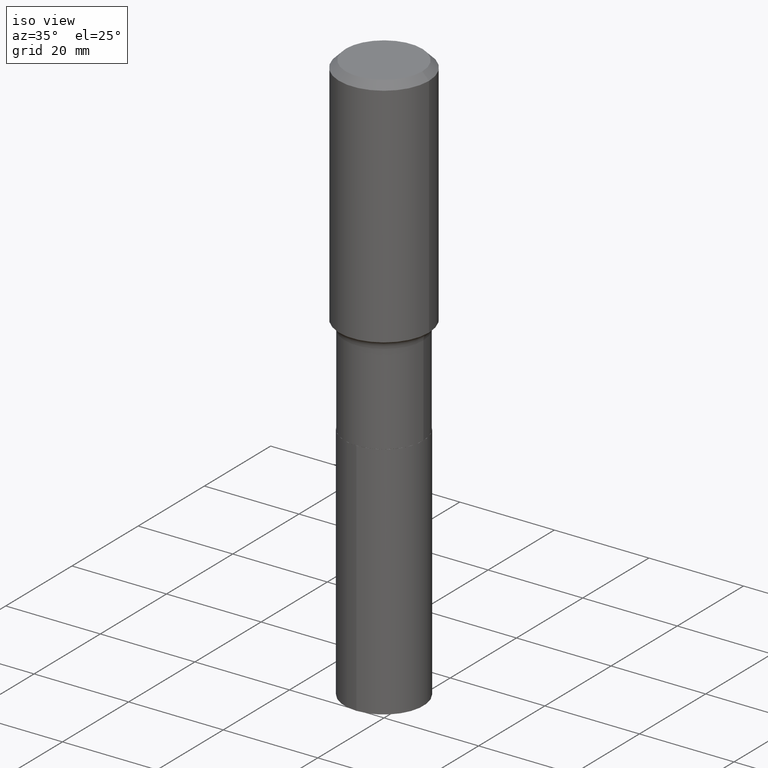
[diagram: clean part render]
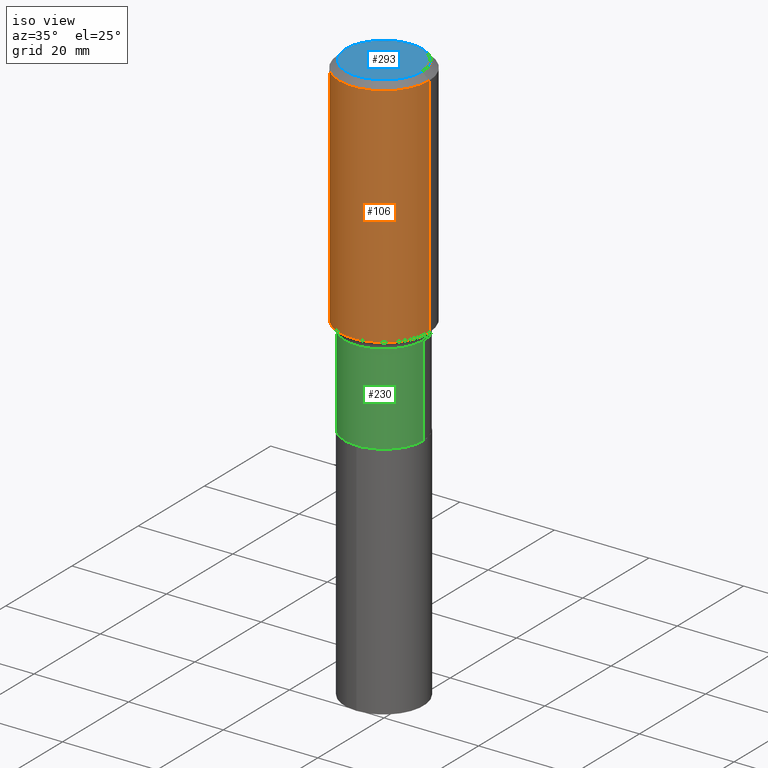
[diagram: same view with three faces highlighted in distinct colors, each labeled with its STEP entity id]
A machine part, iso view with three faces highlighted in distinct colors.
Their STEP definitions:

[orange] entity #106 — the highlighted cylindrical surface (partial cylindrical patch) has radius 9.525 mm, axis along (-0, 0, 1).
#9 = CARTESIAN_POINT ( 'NONE',  ( 0.3750000000000000555, -2.815006829442278240E-15, -0.05625000000000031364 ) ) ;
#21 = FACE_OUTER_BOUND ( 'NONE', #260, .T. ) ;
#35 = ORIENTED_EDGE ( 'NONE', *, *, #376, .T. ) ;
#37 = CARTESIAN_POINT ( 'NONE',  ( 1.375576203479146973E-30, -1.963958253099280262E-16, -0.05625000000000031364 ) ) ;
#42 = CARTESIAN_POINT ( 'NONE',  ( -0.3750000000000002220, -4.144091675948292406E-15, -1.950068258793734799 ) ) ;
#54 = VECTOR ( 'NONE', #235, 39.37007874015748143 ) ;
#55 = EDGE_CURVE ( 'NONE', #291, #436, #122, .T. ) ;
#68 = EDGE_CURVE ( 'NONE', #321, #135, #278, .T. ) ;
#71 = CIRCLE ( 'NONE', #229, 0.3750000000000000555 ) ;
#81 = DIRECTION ( 'NONE',  ( 1.000000000000000000, -6.982962677686269077E-15, 0.000000000000000000 ) ) ;
#106 = ADVANCED_FACE ( 'NONE', ( #21 ), #402, .T. ) ;
#115 = DIRECTION ( 'NONE',  ( 1.000000000000000000, -6.982962677686265922E-15, 4.876176775795935793E-29 ) ) ;
#122 = LINE ( 'NONE', #263, #54 ) ;
#125 = DIRECTION ( 'NONE',  ( 1.000000000000000000, -6.982962677686265922E-15, 0.000000000000000000 ) ) ;
#135 = VERTEX_POINT ( 'NONE', #481 ) ;
#156 = ORIENTED_EDGE ( 'NONE', *, *, #457, .F. ) ;
#169 = CARTESIAN_POINT ( 'NONE',  ( 0.3750000000000002220, -9.427237939181022852E-15, -1.950068258793734799 ) ) ;
#207 = AXIS2_PLACEMENT_3D ( 'NONE', #283, #440, #115 ) ;
#217 = CIRCLE ( 'NONE', #391, 0.3750000000000002220 ) ;
#226 = VECTOR ( 'NONE', #346, 39.37007874015748143 ) ;
#229 = AXIS2_PLACEMENT_3D ( 'NONE', #37, #234, #125 ) ;
#234 = DIRECTION ( 'NONE',  ( -2.445468806185136597E-29, 3.491481338843145583E-15, 1.000000000000000000 ) ) ;
#235 = DIRECTION ( 'NONE',  ( -2.445468806185136877E-29, 3.491481338843145188E-15, 1.000000000000000000 ) ) ;
#242 = ORIENTED_EDGE ( 'NONE', *, *, #55, .T. ) ;
#260 = EDGE_LOOP ( 'NONE', ( #380, #35, #242, #156 ) ) ;
#263 = CARTESIAN_POINT ( 'NONE',  ( 0.3750000000000001110, -2.618611004132350411E-15, 1.828566290923476483E-29 ) ) ;
#272 = CARTESIAN_POINT ( 'NONE',  ( 4.768831096811842640E-29, -6.808626935048671258E-15, -1.950068258793734799 ) ) ;
#278 = LINE ( 'NONE', #460, #226 ) ;
#283 = CARTESIAN_POINT ( 'NONE',  ( 0.000000000000000000, 0.000000000000000000, 0.000000000000000000 ) ) ;
#291 = VERTEX_POINT ( 'NONE', #169 ) ;
#321 = VERTEX_POINT ( 'NONE', #42 ) ;
#346 = DIRECTION ( 'NONE',  ( -2.445468806185136877E-29, 3.491481338843145188E-15, 1.000000000000000000 ) ) ;
#376 = EDGE_CURVE ( 'NONE', #321, #291, #217, .T. ) ;
#380 = ORIENTED_EDGE ( 'NONE', *, *, #68, .F. ) ;
#391 = AXIS2_PLACEMENT_3D ( 'NONE', #272, #451, #81 ) ;
#402 = CYLINDRICAL_SURFACE ( 'NONE', #207, 0.3750000000000001110 ) ;
#436 = VERTEX_POINT ( 'NONE', #9 ) ;
#440 = DIRECTION ( 'NONE',  ( -2.445468806185136597E-29, 3.491481338843145583E-15, 1.000000000000000000 ) ) ;
#451 = DIRECTION ( 'NONE',  ( -2.445468806185136597E-29, 3.491481338843145583E-15, 1.000000000000000000 ) ) ;
#457 = EDGE_CURVE ( 'NONE', #135, #436, #71, .T. ) ;
#460 = CARTESIAN_POINT ( 'NONE',  ( -0.3750000000000001110, 2.664535259100376486E-15, -1.844600658845590159E-29 ) ) ;
#481 = CARTESIAN_POINT ( 'NONE',  ( -0.3750000000000000555, -8.379761210789229591E-16, -0.05625000000000031364 ) ) ;

[blue] entity #293 — the highlighted planar face has unit normal (0, -0, -1).
#18 = AXIS2_PLACEMENT_3D ( 'NONE', #128, #276, #134 ) ;
#75 = AXIS2_PLACEMENT_3D ( 'NONE', #337, #241, #491 ) ;
#84 = CARTESIAN_POINT ( 'NONE',  ( 0.3187499999999999778, -2.477933155631963807E-15, 6.505936120486766208E-18 ) ) ;
#123 = FACE_OUTER_BOUND ( 'NONE', #162, .T. ) ;
#128 = CARTESIAN_POINT ( 'NONE',  ( -1.591006383764331135E-46, 2.271535455632769222E-32, 6.505936120470319537E-18 ) ) ;
#134 = DIRECTION ( 'NONE',  ( 1.000000000000000000, -6.982962677686267499E-15, 4.876227444496879000E-29 ) ) ;
#148 = CIRCLE ( 'NONE', #366, 0.3187499999999999778 ) ;
#157 = CARTESIAN_POINT ( 'NONE',  ( -0.3187499999999999778, 2.324017266167459654E-15, 6.505936120454410585E-18 ) ) ;
#162 = EDGE_LOOP ( 'NONE', ( #475, #253 ) ) ;
#167 = VERTEX_POINT ( 'NONE', #157 ) ;
#212 = CARTESIAN_POINT ( 'NONE',  ( -1.591006383764331135E-46, 2.271535455632769222E-32, 6.505936120470319537E-18 ) ) ;
#241 = DIRECTION ( 'NONE',  ( 2.438088387897960049E-29, -3.491481338843145188E-15, -1.000000000000000000 ) ) ;
#253 = ORIENTED_EDGE ( 'NONE', *, *, #308, .T. ) ;
#276 = DIRECTION ( 'NONE',  ( -2.445468806185136597E-29, 3.491481338843145583E-15, 1.000000000000000000 ) ) ;
#277 = CIRCLE ( 'NONE', #18, 0.3187499999999999778 ) ;
#293 = ADVANCED_FACE ( 'NONE', ( #123 ), #343, .F. ) ;
#308 = EDGE_CURVE ( 'NONE', #490, #167, #148, .T. ) ;
#337 = CARTESIAN_POINT ( 'NONE',  ( -7.955031918821655674E-47, 1.135767727816384611E-32, 3.252968060235159768E-18 ) ) ;
#343 = PLANE ( 'NONE',  #75 ) ;
#366 = AXIS2_PLACEMENT_3D ( 'NONE', #212, #415, #378 ) ;
#375 = EDGE_CURVE ( 'NONE', #167, #490, #277, .T. ) ;
#378 = DIRECTION ( 'NONE',  ( 1.000000000000000000, -6.982962677686267499E-15, 4.876227444496879000E-29 ) ) ;
#415 = DIRECTION ( 'NONE',  ( -2.445468806185136597E-29, 3.491481338843145583E-15, 1.000000000000000000 ) ) ;
#475 = ORIENTED_EDGE ( 'NONE', *, *, #375, .T. ) ;
#490 = VERTEX_POINT ( 'NONE', #84 ) ;
#491 = DIRECTION ( 'NONE',  ( -1.000000000000000000, 6.982962677686265922E-15, -4.876176775795935793E-29 ) ) ;

[green] entity #230 — the highlighted cylindrical surface (partial cylindrical patch) has radius 8.3337 mm, axis along (-0, 0, 1).
#3 = CARTESIAN_POINT ( 'NONE',  ( -0.3280999999999998917, 2.331290716028887941E-15, -1.613902603112634153E-29 ) ) ;
#26 = CARTESIAN_POINT ( 'NONE',  ( -0.3280999999999998917, -6.043550997387220874E-15, -2.775699999999999612 ) ) ;
#33 = VECTOR ( 'NONE', #166, 39.37007874015748143 ) ;
#34 = CARTESIAN_POINT ( 'NONE',  ( 4.943759738583870671E-29, -7.058378674605300908E-15, -2.021599999999999397 ) ) ;
#41 = ORIENTED_EDGE ( 'NONE', *, *, #347, .F. ) ;
#46 = DIRECTION ( 'NONE',  ( 1.000000000000000000, -6.982962677686269077E-15, 0.000000000000000000 ) ) ;
#93 = AXIS2_PLACEMENT_3D ( 'NONE', #34, #200, #46 ) ;
#121 = DIRECTION ( 'NONE',  ( 1.000000000000000000, -6.982962677686267499E-15, 4.876176775795935793E-29 ) ) ;
#141 = CARTESIAN_POINT ( 'NONE',  ( -0.3280999999999998917, -6.043550997387220874E-15, -2.021599999999999397 ) ) ;
#165 = CARTESIAN_POINT ( 'NONE',  ( 6.787887765328082633E-29, -9.691304752226917509E-15, -2.775699999999999612 ) ) ;
#166 = DIRECTION ( 'NONE',  ( -2.445468806185136877E-29, 3.491481338843145188E-15, 1.000000000000000000 ) ) ;
#170 = CIRCLE ( 'NONE', #93, 0.3280999999999998917 ) ;
#186 = CARTESIAN_POINT ( 'NONE',  ( 0.000000000000000000, 0.000000000000000000, 0.000000000000000000 ) ) ;
#200 = DIRECTION ( 'NONE',  ( -2.445468806185136597E-29, 3.491481338843145583E-15, 1.000000000000000000 ) ) ;
#204 = VERTEX_POINT ( 'NONE', #26 ) ;
#230 = ADVANCED_FACE ( 'NONE', ( #446 ), #287, .T. ) ;
#264 = LINE ( 'NONE', #3, #482 ) ;
#274 = VERTEX_POINT ( 'NONE', #405 ) ;
#282 = ORIENTED_EDGE ( 'NONE', *, *, #467, .T. ) ;
#287 = CYLINDRICAL_SURFACE ( 'NONE', #429, 0.3280999999999998917 ) ;
#294 = DIRECTION ( 'NONE',  ( -2.445468806185136597E-29, 3.491481338843145583E-15, 1.000000000000000000 ) ) ;
#299 = DIRECTION ( 'NONE',  ( -2.445468806185136597E-29, 3.491481338843145583E-15, 1.000000000000000000 ) ) ;
#311 = DIRECTION ( 'NONE',  ( -2.445468806185136877E-29, 3.491481338843145188E-15, 1.000000000000000000 ) ) ;
#325 = AXIS2_PLACEMENT_3D ( 'NONE', #165, #299, #383 ) ;
#328 = VERTEX_POINT ( 'NONE', #340 ) ;
#335 = CARTESIAN_POINT ( 'NONE',  ( 0.3280999999999998917, -2.291110054548863720E-15, 1.599873600138646028E-29 ) ) ;
#340 = CARTESIAN_POINT ( 'NONE',  ( 0.3280999999999998917, -9.349488729154165811E-15, -2.021599999999999397 ) ) ;
#341 = LINE ( 'NONE', #335, #33 ) ;
#347 = EDGE_CURVE ( 'NONE', #204, #450, #264, .T. ) ;
#368 = EDGE_LOOP ( 'NONE', ( #41, #416, #282, #483 ) ) ;
#383 = DIRECTION ( 'NONE',  ( 1.000000000000000000, -6.982962677686266711E-15, 0.000000000000000000 ) ) ;
#405 = CARTESIAN_POINT ( 'NONE',  ( 0.3280999999999998917, -1.198241480677577926E-14, -2.775699999999999612 ) ) ;
#407 = EDGE_CURVE ( 'NONE', #204, #274, #462, .T. ) ;
#416 = ORIENTED_EDGE ( 'NONE', *, *, #407, .T. ) ;
#429 = AXIS2_PLACEMENT_3D ( 'NONE', #186, #294, #121 ) ;
#446 = FACE_OUTER_BOUND ( 'NONE', #368, .T. ) ;
#450 = VERTEX_POINT ( 'NONE', #141 ) ;
#462 = CIRCLE ( 'NONE', #325, 0.3280999999999998917 ) ;
#466 = EDGE_CURVE ( 'NONE', #450, #328, #170, .T. ) ;
#467 = EDGE_CURVE ( 'NONE', #274, #328, #341, .T. ) ;
#482 = VECTOR ( 'NONE', #311, 39.37007874015748143 ) ;
#483 = ORIENTED_EDGE ( 'NONE', *, *, #466, .F. ) ;